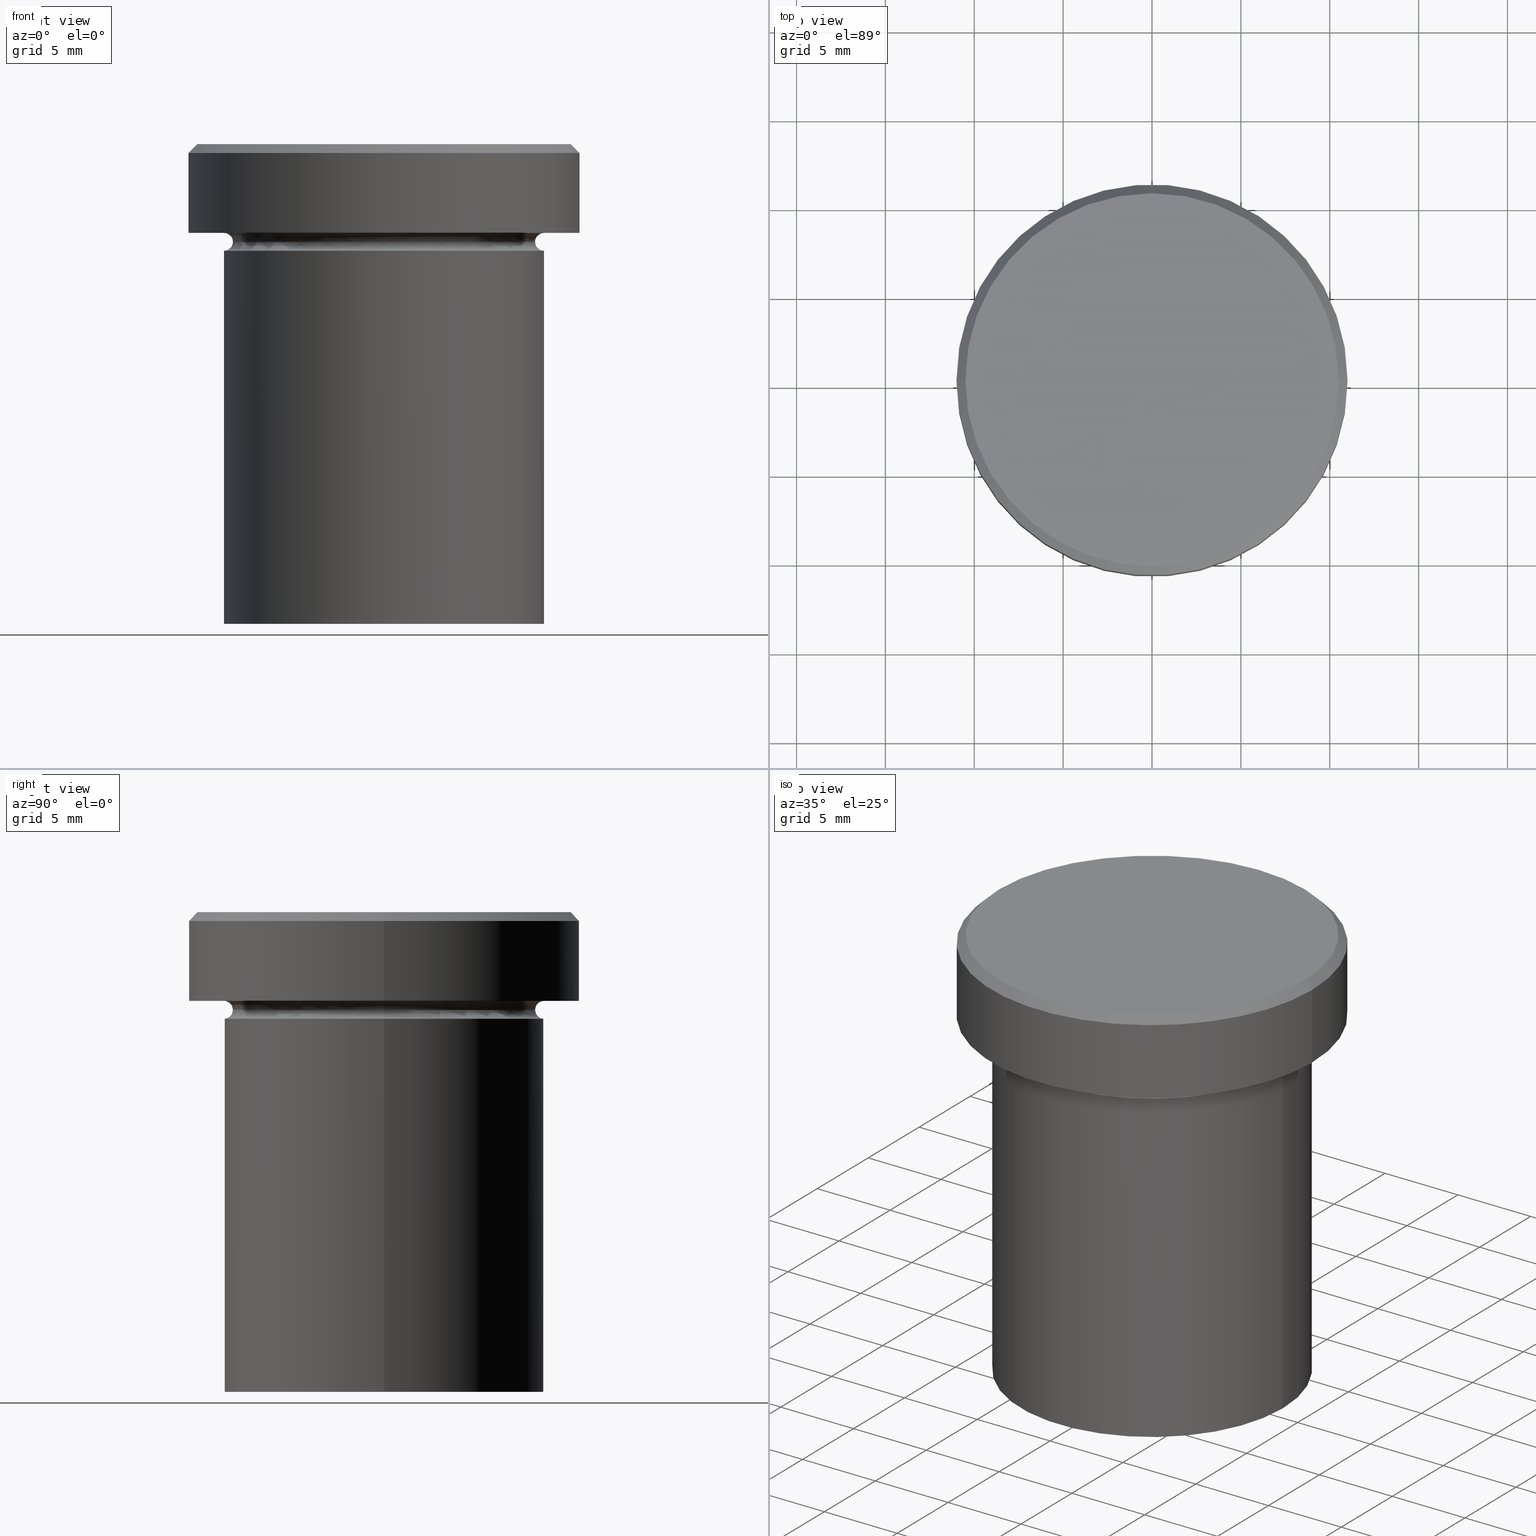
[diagram: canonical four-view strip — front | top / right | iso, engineering-drawing reading convention]
A machine part, canonical four-view strip (front | top / right | iso — engineering-drawing reading convention). The complete STEP part file that produces these views, byte-faithful:
ISO-10303-21;
HEADER;
FILE_DESCRIPTION (( 'STEP AP203' ),
    '1' );
FILE_NAME ('5b6a.STEP',
    '2024-01-02T22:01:50',
    ( '' ),
    ( '' ),
    'SwSTEP 2.0',
    'SolidWorks 2019',
    '' );
FILE_SCHEMA (( 'CONFIG_CONTROL_DESIGN' ));
ENDSEC;

DATA;
#1 = VERTEX_POINT ( 'NONE', #386 ) ;
#2 = DIRECTION ( 'NONE',  ( 0.000000000000000000, 0.000000000000000000, -1.000000000000000000 ) ) ;
#3 = CIRCLE ( 'NONE', #237, 9.000000000000000000 ) ;
#4 = ORIENTED_EDGE ( 'NONE', *, *, #89, .T. ) ;
#5 = CARTESIAN_POINT ( 'NONE',  ( 0.000000000000000000, 0.000000000000000000, -5.000000000000000000 ) ) ;
#6 = LOCAL_TIME ( 23, 1, 50.00000000000000000, #80 ) ;
#7 = DIRECTION ( 'NONE',  ( 0.000000000000000000, 0.000000000000000000, -1.000000000000000000 ) ) ;
#8 = ADVANCED_FACE ( 'NONE', ( #142 ), #201, .T. ) ;
#9 = ORIENTED_EDGE ( 'NONE', *, *, #362, .F. ) ;
#10 = CALENDAR_DATE ( 2024, 2, 1 ) ;
#11 = DIRECTION ( 'NONE',  ( -1.000000000000000000, 0.000000000000000000, -0.000000000000000000 ) ) ;
#12 = DATE_AND_TIME ( #296, #60 ) ;
#13 = VERTEX_POINT ( 'NONE', #264 ) ;
#14 = AXIS2_PLACEMENT_3D ( 'NONE', #32, #317, #289 ) ;
#15 = EDGE_CURVE ( 'NONE', #93, #156, #310, .T. ) ;
#16 = PERSON ( 'NEUR�EN�', 'NEUR�EN�', 'NEUR�EN�', ('NEUR�EN�'), ('NEUR�EN�'), ('NEUR�EN�') ) ;
#17 = APPROVAL_DATE_TIME ( #232, #208 ) ;
#18 = EDGE_CURVE ( 'NONE', #156, #93, #91, .T. ) ;
#19 = AXIS2_PLACEMENT_3D ( 'NONE', #352, #69, #257 ) ;
#20 = CARTESIAN_POINT ( 'NONE',  ( -10.49999999999999822, 0.000000000000000000, 0.000000000000000000 ) ) ;
#21 = PRODUCT_RELATED_PRODUCT_CATEGORY ( 'detail', '', ( #129 ) ) ;
#22 = DIRECTION ( 'NONE',  ( -0.000000000000000000, -0.000000000000000000, 1.000000000000000000 ) ) ;
#23 = DIRECTION ( 'NONE',  ( 1.000000000000000000, 0.000000000000000000, 0.000000000000000000 ) ) ;
#24 = ADVANCED_FACE ( 'NONE', ( #46 ), #397, .F. ) ;
#25 = CARTESIAN_POINT ( 'NONE',  ( 10.49999999999999822, 1.316495309083404420E-15, 0.000000000000000000 ) ) ;
#26 = VECTOR ( 'NONE', #134, 1000.000000000000114 ) ;
#27 = CARTESIAN_POINT ( 'NONE',  ( -11.00000000000000000, 1.347111479062088405E-15, -0.5000000000000038858 ) ) ;
#28 = ORIENTED_EDGE ( 'NONE', *, *, #186, .T. ) ;
#29 = CYLINDRICAL_SURFACE ( 'NONE', #168, 9.000000000000000000 ) ;
#30 = EDGE_CURVE ( 'NONE', #44, #253, #131, .T. ) ;
#31 = ORIENTED_EDGE ( 'NONE', *, *, #191, .T. ) ;
#32 = CARTESIAN_POINT ( 'NONE',  ( 0.000000000000000000, 0.000000000000000000, 0.000000000000000000 ) ) ;
#33 = AXIS2_PLACEMENT_3D ( 'NONE', #85, #59, #332 ) ;
#34 = EDGE_LOOP ( 'NONE', ( #202, #218, #31, #356 ) ) ;
#35 =( NAMED_UNIT ( * ) PLANE_ANGLE_UNIT ( ) SI_UNIT ( $, .RADIAN. ) );
#36 = ORIENTED_EDGE ( 'NONE', *, *, #82, .T. ) ;
#37 = FACE_OUTER_BOUND ( 'NONE', #188, .T. ) ;
#38 = CARTESIAN_POINT ( 'NONE',  ( 8.499999999999998224, 0.000000000000000000, -5.500000000000000000 ) ) ;
#39 = CC_DESIGN_DATE_AND_TIME_ASSIGNMENT ( #326, #43, ( #259 ) ) ;
#40 = CARTESIAN_POINT ( 'NONE',  ( 0.000000000000000000, 0.000000000000000000, -27.00000000000000000 ) ) ;
#41 = CIRCLE ( 'NONE', #154, 11.00000000000000000 ) ;
#42 = APPROVAL_PERSON_ORGANIZATION ( #203, #173, #328 ) ;
#43 = DATE_TIME_ROLE ( 'creation_date' ) ;
#44 = VERTEX_POINT ( 'NONE', #104 ) ;
#45 = APPROVAL_STATUS ( 'not_yet_approved' ) ;
#46 = FACE_OUTER_BOUND ( 'NONE', #34, .T. ) ;
#47 = MECHANICAL_CONTEXT ( 'NONE', #148, 'mechanical' ) ;
#48 = CONICAL_SURFACE ( 'NONE', #233, 10.49999999999999822, 0.7853981633974447263 ) ;
#49 = CC_DESIGN_APPROVAL ( #173, ( #388 ) ) ;
#50 = PERSON_AND_ORGANIZATION ( #16, #364 ) ;
#51 = DIRECTION ( 'NONE',  ( 1.000000000000000000, 0.000000000000000000, 0.000000000000000000 ) ) ;
#52 = EDGE_CURVE ( 'NONE', #66, #314, #3, .T. ) ;
#53 = VERTEX_POINT ( 'NONE', #320 ) ;
#54 = LOCAL_TIME ( 23, 1, 50.00000000000000000, #395 ) ;
#55 = DIRECTION ( 'NONE',  ( 1.000000000000000000, 0.000000000000000000, 0.000000000000000000 ) ) ;
#56 = DIRECTION ( 'NONE',  ( -0.000000000000000000, -0.000000000000000000, 1.000000000000000000 ) ) ;
#57 = DIRECTION ( 'NONE',  ( 0.000000000000000000, 0.000000000000000000, -1.000000000000000000 ) ) ;
#58 = EDGE_LOOP ( 'NONE', ( #403, #139, #184, #78 ) ) ;
#59 = DIRECTION ( 'NONE',  ( 0.000000000000000000, 0.000000000000000000, -1.000000000000000000 ) ) ;
#60 = LOCAL_TIME ( 23, 1, 50.00000000000000000, #177 ) ;
#61 = VERTEX_POINT ( 'NONE', #38 ) ;
#62 = ADVANCED_FACE ( 'NONE', ( #76 ), #325, .T. ) ;
#63 = DIRECTION ( 'NONE',  ( -1.000000000000000000, -1.224646799147353454E-16, 0.000000000000000000 ) ) ;
#64 = ORIENTED_EDGE ( 'NONE', *, *, #391, .T. ) ;
#65 = CARTESIAN_POINT ( 'NONE',  ( 9.000000000000000000, 1.102182119232617714E-15, -4.999999999999999112 ) ) ;
#66 = VERTEX_POINT ( 'NONE', #276 ) ;
#67 = CALENDAR_DATE ( 2024, 2, 1 ) ;
#68 = ORIENTED_EDGE ( 'NONE', *, *, #304, .T. ) ;
#69 = DIRECTION ( 'NONE',  ( 0.000000000000000000, -1.000000000000000000, 0.000000000000000000 ) ) ;
#70 = DIRECTION ( 'NONE',  ( -0.000000000000000000, -0.000000000000000000, 1.000000000000000000 ) ) ;
#71 = EDGE_CURVE ( 'NONE', #61, #314, #72, .T. ) ;
#72 = CIRCLE ( 'NONE', #298, 0.5000000000000004441 ) ;
#73 = DIRECTION ( 'NONE',  ( 0.000000000000000000, -0.000000000000000000, 1.000000000000000000 ) ) ;
#74 = DESIGN_CONTEXT ( 'detailed design', #207, 'design' ) ;
#75 = APPLICATION_PROTOCOL_DEFINITION ( 'international standard', 'config_control_design', 1994, #207 ) ;
#76 = FACE_OUTER_BOUND ( 'NONE', #385, .T. ) ;
#77 = CIRCLE ( 'NONE', #381, 11.00000000000000000 ) ;
#78 = ORIENTED_EDGE ( 'NONE', *, *, #362, .T. ) ;
#79 = DATE_TIME_ROLE ( 'classification_date' ) ;
#80 = COORDINATED_UNIVERSAL_TIME_OFFSET ( 1, 0, .AHEAD. ) ;
#81 = PERSON_AND_ORGANIZATION ( #16, #364 ) ;
#82 = EDGE_CURVE ( 'NONE', #53, #253, #178, .T. ) ;
#83 = CLOSED_SHELL ( 'NONE', ( #324, #288, #24, #319, #334, #62, #8, #94, #120, #275, #300, #265, #280 ) ) ;
#84 = DIRECTION ( 'NONE',  ( 1.000000000000000000, 0.000000000000000000, 0.000000000000000000 ) ) ;
#85 = CARTESIAN_POINT ( 'NONE',  ( 0.000000000000000000, 0.000000000000000000, -0.5000000000000038858 ) ) ;
#86 = CIRCLE ( 'NONE', #101, 8.499999999999998224 ) ;
#87 = TOROIDAL_SURFACE ( 'NONE', #149, 9.000000000000000000, 0.5000000000000000000 ) ;
#88 = CARTESIAN_POINT ( 'NONE',  ( 9.000000000000000000, 1.102182119232617714E-15, -5.500000000000000000 ) ) ;
#89 = EDGE_CURVE ( 'NONE', #255, #53, #246, .T. ) ;
#90 = DIRECTION ( 'NONE',  ( -0.000000000000000000, -0.000000000000000000, 1.000000000000000000 ) ) ;
#91 = CIRCLE ( 'NONE', #145, 10.49999999999999822 ) ;
#92 = DIRECTION ( 'NONE',  ( -0.000000000000000000, -0.000000000000000000, 1.000000000000000000 ) ) ;
#93 = VERTEX_POINT ( 'NONE', #20 ) ;
#94 = ADVANCED_FACE ( 'NONE', ( #279 ), #150, .T. ) ;
#95 = LINE ( 'NONE', #242, #193 ) ;
#96 = AXIS2_PLACEMENT_3D ( 'NONE', #160, #127, #282 ) ;
#97 = ORIENTED_EDGE ( 'NONE', *, *, #71, .T. ) ;
#98 = CARTESIAN_POINT ( 'NONE',  ( 0.000000000000000000, 0.000000000000000000, -0.5000000000000038858 ) ) ;
#99 = DIRECTION ( 'NONE',  ( -0.000000000000000000, -0.000000000000000000, 1.000000000000000000 ) ) ;
#100 = CARTESIAN_POINT ( 'NONE',  ( 10.49999999999999822, 1.285879139104720633E-15, 0.000000000000000000 ) ) ;
#101 = AXIS2_PLACEMENT_3D ( 'NONE', #344, #398, #340 ) ;
#102 =( GEOMETRIC_REPRESENTATION_CONTEXT ( 3 ) GLOBAL_UNCERTAINTY_ASSIGNED_CONTEXT ( ( #269 ) ) GLOBAL_UNIT_ASSIGNED_CONTEXT ( ( #224, #35, #130 ) ) REPRESENTATION_CONTEXT ( 'NONE', 'WORKASPACE' ) );
#103 = EDGE_CURVE ( 'NONE', #13, #179, #155, .T. ) ;
#104 = CARTESIAN_POINT ( 'NONE',  ( -9.000000000000000000, 1.102182119232617714E-15, -27.00000000000000000 ) ) ;
#105 = CARTESIAN_POINT ( 'NONE',  ( -10.49999999999999822, 0.000000000000000000, 0.000000000000000000 ) ) ;
#106 = ORIENTED_EDGE ( 'NONE', *, *, #215, .T. ) ;
#107 = FACE_OUTER_BOUND ( 'NONE', #283, .T. ) ;
#108 = ORIENTED_EDGE ( 'NONE', *, *, #113, .F. ) ;
#109 = ORIENTED_EDGE ( 'NONE', *, *, #30, .F. ) ;
#110 = CIRCLE ( 'NONE', #19, 0.5000000000000004441 ) ;
#111 = DATE_AND_TIME ( #239, #258 ) ;
#112 = ORIENTED_EDGE ( 'NONE', *, *, #245, .F. ) ;
#113 = EDGE_CURVE ( 'NONE', #61, #1, #86, .T. ) ;
#114 = CONICAL_SURFACE ( 'NONE', #14, 10.49999999999999822, 0.7853981633974447263 ) ;
#115 = CARTESIAN_POINT ( 'NONE',  ( 0.000000000000000000, 0.000000000000000000, -27.00000000000000000 ) ) ;
#116 = DIRECTION ( 'NONE',  ( -1.224646799147353207E-16, 1.000000000000000000, 0.000000000000000000 ) ) ;
#117 = CIRCLE ( 'NONE', #302, 9.000000000000000000 ) ;
#118 = CARTESIAN_POINT ( 'NONE',  ( 0.000000000000000000, 0.000000000000000000, -5.500000000000000000 ) ) ;
#119 = CARTESIAN_POINT ( 'NONE',  ( 0.000000000000000000, 0.000000000000000000, -5.000000000000000000 ) ) ;
#120 = ADVANCED_FACE ( 'NONE', ( #273, #278 ), #367, .T. ) ;
#121 = CARTESIAN_POINT ( 'NONE',  ( 0.000000000000000000, 0.000000000000000000, -6.000000000000000000 ) ) ;
#122 = EDGE_LOOP ( 'NONE', ( #293, #68, #165, #197 ) ) ;
#123 = CARTESIAN_POINT ( 'NONE',  ( 0.000000000000000000, 0.000000000000000000, -5.500000000000000000 ) ) ;
#124 = CIRCLE ( 'NONE', #33, 11.00000000000000000 ) ;
#125 = LOCAL_TIME ( 23, 1, 50.00000000000000000, #175 ) ;
#126 = ORIENTED_EDGE ( 'NONE', *, *, #15, .F. ) ;
#127 = DIRECTION ( 'NONE',  ( -0.000000000000000000, -1.000000000000000000, -0.000000000000000000 ) ) ;
#128 = VERTEX_POINT ( 'NONE', #301 ) ;
#129 = PRODUCT ( '5b6a', '5b6a', '', ( #47 ) ) ;
#130 =( NAMED_UNIT ( * ) SI_UNIT ( $, .STERADIAN. ) SOLID_ANGLE_UNIT ( ) );
#131 = LINE ( 'NONE', #380, #393 ) ;
#132 = DIRECTION ( 'NONE',  ( -0.000000000000000000, -0.000000000000000000, 1.000000000000000000 ) ) ;
#133 = ORIENTED_EDGE ( 'NONE', *, *, #366, .T. ) ;
#134 = DIRECTION ( 'NONE',  ( -0.7071067811865451302, 0.000000000000000000, -0.7071067811865500152 ) ) ;
#135 = CC_DESIGN_PERSON_AND_ORGANIZATION_ASSIGNMENT ( #50, #359, ( #335 ) ) ;
#136 = CARTESIAN_POINT ( 'NONE',  ( 0.000000000000000000, 0.000000000000000000, -5.000000000000000000 ) ) ;
#137 = AXIS2_PLACEMENT_3D ( 'NONE', #209, #331, #199 ) ;
#138 = APPROVAL_STATUS ( 'not_yet_approved' ) ;
#139 = ORIENTED_EDGE ( 'NONE', *, *, #245, .T. ) ;
#140 = SECURITY_CLASSIFICATION_LEVEL ( 'unclassified' ) ;
#141 = AXIS2_PLACEMENT_3D ( 'NONE', #98, #7, #321 ) ;
#142 = FACE_OUTER_BOUND ( 'NONE', #225, .T. ) ;
#143 = CIRCLE ( 'NONE', #205, 8.499999999999998224 ) ;
#144 = APPROVAL_ROLE ( '' ) ;
#145 = AXIS2_PLACEMENT_3D ( 'NONE', #234, #353, #236 ) ;
#146 = EDGE_CURVE ( 'NONE', #1, #253, #369, .T. ) ;
#147 = CALENDAR_DATE ( 2024, 2, 1 ) ;
#148 = APPLICATION_CONTEXT ( 'configuration controlled 3d designs of mechanical parts and assemblies' ) ;
#149 = AXIS2_PLACEMENT_3D ( 'NONE', #379, #190, #383 ) ;
#150 = CYLINDRICAL_SURFACE ( 'NONE', #387, 11.00000000000000000 ) ;
#151 = CC_DESIGN_PERSON_AND_ORGANIZATION_ASSIGNMENT ( #360, #266, ( #388 ) ) ;
#152 = DIRECTION ( 'NONE',  ( 1.000000000000000000, 0.000000000000000000, 0.000000000000000000 ) ) ;
#153 = AXIS2_PLACEMENT_3D ( 'NONE', #390, #358, #84 ) ;
#154 = AXIS2_PLACEMENT_3D ( 'NONE', #183, #214, #55 ) ;
#155 = LINE ( 'NONE', #217, #211 ) ;
#156 = VERTEX_POINT ( 'NONE', #25 ) ;
#157 = DIRECTION ( 'NONE',  ( -1.000000000000000000, 1.224646799147353454E-16, 0.000000000000000000 ) ) ;
#158 = CC_DESIGN_PERSON_AND_ORGANIZATION_ASSIGNMENT ( #238, #394, ( #259 ) ) ;
#159 = ORIENTED_EDGE ( 'NONE', *, *, #366, .F. ) ;
#160 = CARTESIAN_POINT ( 'NONE',  ( -9.000000000000000000, 0.000000000000000000, -5.500000000000000000 ) ) ;
#161 = DIRECTION ( 'NONE',  ( -1.000000000000000000, 0.000000000000000000, 0.000000000000000000 ) ) ;
#162 = CC_DESIGN_APPROVAL ( #372, ( #335 ) ) ;
#163 = ORIENTED_EDGE ( 'NONE', *, *, #349, .T. ) ;
#164 = EDGE_CURVE ( 'NONE', #13, #128, #77, .T. ) ;
#165 = ORIENTED_EDGE ( 'NONE', *, *, #221, .F. ) ;
#166 = DIRECTION ( 'NONE',  ( 1.000000000000000000, 0.000000000000000000, 0.000000000000000000 ) ) ;
#167 = LINE ( 'NONE', #105, #26 ) ;
#168 = AXIS2_PLACEMENT_3D ( 'NONE', #405, #99, #346 ) ;
#169 = CC_DESIGN_SECURITY_CLASSIFICATION ( #388, ( #335 ) ) ;
#170 = DIRECTION ( 'NONE',  ( -0.000000000000000000, -0.000000000000000000, 1.000000000000000000 ) ) ;
#171 = PERSON_AND_ORGANIZATION ( #16, #364 ) ;
#172 = CARTESIAN_POINT ( 'NONE',  ( 0.000000000000000000, 9.000000000000000000, -26.99999999999999645 ) ) ;
#173 = APPROVAL ( #206, 'NEUR�EN�' ) ;
#174 = ORIENTED_EDGE ( 'NONE', *, *, #164, .F. ) ;
#175 = COORDINATED_UNIVERSAL_TIME_OFFSET ( 1, 0, .AHEAD. ) ;
#176 = CIRCLE ( 'NONE', #315, 9.000000000000000000 ) ;
#177 = COORDINATED_UNIVERSAL_TIME_OFFSET ( 1, 0, .AHEAD. ) ;
#178 = CIRCLE ( 'NONE', #374, 9.000000000000000000 ) ;
#179 = VERTEX_POINT ( 'NONE', #219 ) ;
#180 = AXIS2_PLACEMENT_3D ( 'NONE', #118, #57, #244 ) ;
#181 = CARTESIAN_POINT ( 'NONE',  ( 0.000000000000000000, 0.000000000000000000, -5.500000000000000000 ) ) ;
#182 = DIRECTION ( 'NONE',  ( 1.000000000000000000, 0.000000000000000000, 0.000000000000000000 ) ) ;
#183 = CARTESIAN_POINT ( 'NONE',  ( 0.000000000000000000, 0.000000000000000000, -5.000000000000000000 ) ) ;
#184 = ORIENTED_EDGE ( 'NONE', *, *, #103, .T. ) ;
#185 = APPROVAL_PERSON_ORGANIZATION ( #363, #208, #144 ) ;
#186 = EDGE_CURVE ( 'NONE', #128, #227, #95, .T. ) ;
#187 = CARTESIAN_POINT ( 'NONE',  ( -9.000000000000000000, 1.102182119232617714E-15, -5.500000000000000000 ) ) ;
#188 = EDGE_LOOP ( 'NONE', ( #133, #342, #260, #290 ) ) ;
#189 = DIRECTION ( 'NONE',  ( -0.000000000000000000, -0.000000000000000000, 1.000000000000000000 ) ) ;
#190 = DIRECTION ( 'NONE',  ( 0.000000000000000000, 0.000000000000000000, -1.000000000000000000 ) ) ;
#191 = EDGE_CURVE ( 'NONE', #253, #53, #176, .T. ) ;
#192 = EDGE_LOOP ( 'NONE', ( #407, #195, #350, #268 ) ) ;
#193 = VECTOR ( 'NONE', #303, 1000.000000000000000 ) ;
#194 = DIRECTION ( 'NONE',  ( 0.7071067811865451302, 8.659560562354903276E-17, -0.7071067811865500152 ) ) ;
#195 = ORIENTED_EDGE ( 'NONE', *, *, #113, .T. ) ;
#196 = CARTESIAN_POINT ( 'NONE',  ( 0.000000000000000000, 0.000000000000000000, 0.000000000000000000 ) ) ;
#197 = ORIENTED_EDGE ( 'NONE', *, *, #391, .F. ) ;
#198 = CARTESIAN_POINT ( 'NONE',  ( 0.000000000000000000, 0.000000000000000000, 0.000000000000000000 ) ) ;
#199 = DIRECTION ( 'NONE',  ( 1.000000000000000000, 0.000000000000000000, 0.000000000000000000 ) ) ;
#200 = CC_DESIGN_APPROVAL ( #208, ( #259 ) ) ;
#201 = PLANE ( 'NONE',  #305 ) ;
#202 = ORIENTED_EDGE ( 'NONE', *, *, #249, .F. ) ;
#203 = PERSON_AND_ORGANIZATION ( #16, #364 ) ;
#204 = AXIS2_PLACEMENT_3D ( 'NONE', #370, #307, #241 ) ;
#205 = AXIS2_PLACEMENT_3D ( 'NONE', #181, #22, #152 ) ;
#206 = APPROVAL_STATUS ( 'not_yet_approved' ) ;
#207 = APPLICATION_CONTEXT ( 'configuration controlled 3d designs of mechanical parts and assemblies' ) ;
#208 = APPROVAL ( #138, 'NEUR�EN�' ) ;
#209 = CARTESIAN_POINT ( 'NONE',  ( 0.000000000000000000, 0.000000000000000000, 0.000000000000000000 ) ) ;
#210 = DIRECTION ( 'NONE',  ( 1.000000000000000000, 0.000000000000000000, 0.000000000000000000 ) ) ;
#211 = VECTOR ( 'NONE', #92, 1000.000000000000000 ) ;
#212 = DIRECTION ( 'NONE',  ( 1.000000000000000000, 0.000000000000000000, 0.000000000000000000 ) ) ;
#213 = ADVANCED_BREP_SHAPE_REPRESENTATION ( '5b6a', ( #361, #285 ), #102 ) ;
#214 = DIRECTION ( 'NONE',  ( -0.000000000000000000, -0.000000000000000000, 1.000000000000000000 ) ) ;
#215 = EDGE_CURVE ( 'NONE', #44, #255, #117, .T. ) ;
#216 = EDGE_LOOP ( 'NONE', ( #248, #97, #220, #229 ) ) ;
#217 = CARTESIAN_POINT ( 'NONE',  ( 11.00000000000000000, 0.000000000000000000, 0.000000000000000000 ) ) ;
#218 = ORIENTED_EDGE ( 'NONE', *, *, #146, .T. ) ;
#219 = CARTESIAN_POINT ( 'NONE',  ( 11.00000000000000000, 0.000000000000000000, -0.5000000000000038858 ) ) ;
#220 = ORIENTED_EDGE ( 'NONE', *, *, #52, .F. ) ;
#221 = EDGE_CURVE ( 'NONE', #227, #179, #124, .T. ) ;
#222 = FACE_OUTER_BOUND ( 'NONE', #216, .T. ) ;
#223 = EDGE_LOOP ( 'NONE', ( #109, #106, #4, #297 ) ) ;
#224 =( LENGTH_UNIT ( ) NAMED_UNIT ( * ) SI_UNIT ( .MILLI., .METRE. ) );
#225 = EDGE_LOOP ( 'NONE', ( #378, #376 ) ) ;
#226 = DIRECTION ( 'NONE',  ( -0.000000000000000000, -0.000000000000000000, 1.000000000000000000 ) ) ;
#227 = VERTEX_POINT ( 'NONE', #27 ) ;
#228 = DIRECTION ( 'NONE',  ( -1.000000000000000000, 0.000000000000000000, 0.000000000000000000 ) ) ;
#229 = ORIENTED_EDGE ( 'NONE', *, *, #402, .F. ) ;
#230 = CC_DESIGN_PERSON_AND_ORGANIZATION_ASSIGNMENT ( #81, #270, ( #335 ) ) ;
#231 = DIRECTION ( 'NONE',  ( 1.000000000000000000, 0.000000000000000000, 0.000000000000000000 ) ) ;
#232 = DATE_AND_TIME ( #10, #6 ) ;
#233 = AXIS2_PLACEMENT_3D ( 'NONE', #196, #2, #161 ) ;
#234 = CARTESIAN_POINT ( 'NONE',  ( 0.000000000000000000, 0.000000000000000000, 0.000000000000000000 ) ) ;
#235 = APPROVAL_ROLE ( '' ) ;
#236 = DIRECTION ( 'NONE',  ( 1.000000000000000000, 0.000000000000000000, 0.000000000000000000 ) ) ;
#237 = AXIS2_PLACEMENT_3D ( 'NONE', #136, #70, #262 ) ;
#238 = PERSON_AND_ORGANIZATION ( #16, #364 ) ;
#239 = CALENDAR_DATE ( 2024, 2, 1 ) ;
#240 = APPROVAL_PERSON_ORGANIZATION ( #171, #372, #235 ) ;
#241 = DIRECTION ( 'NONE',  ( -1.000000000000000000, 0.000000000000000000, -0.000000000000000000 ) ) ;
#242 = CARTESIAN_POINT ( 'NONE',  ( -11.00000000000000000, 1.347111479062088405E-15, 0.000000000000000000 ) ) ;
#243 = AXIS2_PLACEMENT_3D ( 'NONE', #40, #226, #409 ) ;
#244 = DIRECTION ( 'NONE',  ( -1.000000000000000000, 0.000000000000000000, 0.000000000000000000 ) ) ;
#245 = EDGE_CURVE ( 'NONE', #128, #13, #41, .T. ) ;
#246 = LINE ( 'NONE', #336, #333 ) ;
#247 = DIRECTION ( 'NONE',  ( 1.000000000000000000, 0.000000000000000000, 0.000000000000000000 ) ) ;
#248 = ORIENTED_EDGE ( 'NONE', *, *, #249, .T. ) ;
#249 = EDGE_CURVE ( 'NONE', #1, #61, #143, .T. ) ;
#250 = CIRCLE ( 'NONE', #96, 0.5000000000000004441 ) ;
#251 = DIRECTION ( 'NONE',  ( -0.000000000000000000, -0.000000000000000000, 1.000000000000000000 ) ) ;
#252 = ORIENTED_EDGE ( 'NONE', *, *, #146, .F. ) ;
#253 = VERTEX_POINT ( 'NONE', #338 ) ;
#254 = DIRECTION ( 'NONE',  ( -0.000000000000000000, -0.000000000000000000, 1.000000000000000000 ) ) ;
#255 = VERTEX_POINT ( 'NONE', #274 ) ;
#256 = CIRCLE ( 'NONE', #316, 9.000000000000000000 ) ;
#257 = DIRECTION ( 'NONE',  ( 0.000000000000000000, 0.000000000000000000, -1.000000000000000000 ) ) ;
#258 = LOCAL_TIME ( 23, 1, 50.00000000000000000, #389 ) ;
#259 = PRODUCT_DEFINITION ( 'NEZN�M�', '', #335, #74 ) ;
#260 = ORIENTED_EDGE ( 'NONE', *, *, #82, .F. ) ;
#261 = CARTESIAN_POINT ( 'NONE',  ( 0.000000000000000000, 0.000000000000000000, 0.000000000000000000 ) ) ;
#262 = DIRECTION ( 'NONE',  ( -1.000000000000000000, 0.000000000000000000, 0.000000000000000000 ) ) ;
#263 = CARTESIAN_POINT ( 'NONE',  ( 0.000000000000000000, 0.000000000000000000, 0.000000000000000000 ) ) ;
#264 = CARTESIAN_POINT ( 'NONE',  ( 11.00000000000000000, 0.000000000000000000, -5.000000000000000000 ) ) ;
#265 = ADVANCED_FACE ( 'NONE', ( #368 ), #357, .F. ) ;
#266 = PERSON_AND_ORGANIZATION_ROLE ( 'classification_officer' ) ;
#267 = AXIS2_PLACEMENT_3D ( 'NONE', #198, #189, #231 ) ;
#268 = ORIENTED_EDGE ( 'NONE', *, *, #408, .F. ) ;
#269 = UNCERTAINTY_MEASURE_WITH_UNIT (LENGTH_MEASURE( 1.000000000000000082E-05 ), #224, 'distance_accuracy_value', 'NONE');
#270 = PERSON_AND_ORGANIZATION_ROLE ( 'creator' ) ;
#271 = DIRECTION ( 'NONE',  ( 0.000000000000000000, 0.000000000000000000, 1.000000000000000000 ) ) ;
#272 = PERSON_AND_ORGANIZATION_ROLE ( 'design_owner' ) ;
#273 = FACE_BOUND ( 'NONE', #339, .T. ) ;
#274 = CARTESIAN_POINT ( 'NONE',  ( 9.000000000000000000, 0.000000000000000000, -27.00000000000000000 ) ) ;
#275 = ADVANCED_FACE ( 'NONE', ( #399 ), #29, .T. ) ;
#276 = CARTESIAN_POINT ( 'NONE',  ( -9.000000000000000000, 0.000000000000000000, -4.999999999999999112 ) ) ;
#277 = CIRCLE ( 'NONE', #141, 11.00000000000000000 ) ;
#278 = FACE_OUTER_BOUND ( 'NONE', #345, .T. ) ;
#279 = FACE_OUTER_BOUND ( 'NONE', #58, .T. ) ;
#280 = ADVANCED_FACE ( 'NONE', ( #107 ), #48, .T. ) ;
#281 = ORIENTED_EDGE ( 'NONE', *, *, #164, .T. ) ;
#282 = DIRECTION ( 'NONE',  ( 0.000000000000000000, 0.000000000000000000, -1.000000000000000000 ) ) ;
#283 = EDGE_LOOP ( 'NONE', ( #384, #126, #64, #9 ) ) ;
#284 = DATE_AND_TIME ( #67, #125 ) ;
#285 = AXIS2_PLACEMENT_3D ( 'NONE', #263, #271, #51 ) ;
#286 = FACE_OUTER_BOUND ( 'NONE', #347, .T. ) ;
#287 = ORIENTED_EDGE ( 'NONE', *, *, #221, .T. ) ;
#288 = ADVANCED_FACE ( 'NONE', ( #222 ), #87, .F. ) ;
#289 = DIRECTION ( 'NONE',  ( -1.000000000000000000, 0.000000000000000000, 0.000000000000000000 ) ) ;
#290 = ORIENTED_EDGE ( 'NONE', *, *, #89, .F. ) ;
#291 = CIRCLE ( 'NONE', #243, 9.000000000000000000 ) ;
#292 = CYLINDRICAL_SURFACE ( 'NONE', #267, 9.000000000000000000 ) ;
#293 = ORIENTED_EDGE ( 'NONE', *, *, #18, .F. ) ;
#294 = APPROVAL_DATE_TIME ( #12, #372 ) ;
#295 = DIRECTION ( 'NONE',  ( 0.000000000000000000, 0.000000000000000000, -1.000000000000000000 ) ) ;
#296 = CALENDAR_DATE ( 2024, 2, 1 ) ;
#297 = ORIENTED_EDGE ( 'NONE', *, *, #191, .F. ) ;
#298 = AXIS2_PLACEMENT_3D ( 'NONE', #88, #116, #63 ) ;
#299 = PERSON_AND_ORGANIZATION ( #16, #364 ) ;
#300 = ADVANCED_FACE ( 'NONE', ( #377 ), #375, .F. ) ;
#301 = CARTESIAN_POINT ( 'NONE',  ( -11.00000000000000000, 1.347111479062088405E-15, -5.000000000000000000 ) ) ;
#302 = AXIS2_PLACEMENT_3D ( 'NONE', #115, #90, #182 ) ;
#303 = DIRECTION ( 'NONE',  ( -0.000000000000000000, -0.000000000000000000, 1.000000000000000000 ) ) ;
#304 = EDGE_CURVE ( 'NONE', #156, #179, #348, .T. ) ;
#305 = AXIS2_PLACEMENT_3D ( 'NONE', #354, #73, #327 ) ;
#306 = CARTESIAN_POINT ( 'NONE',  ( 0.000000000000000000, 0.000000000000000000, 0.000000000000000000 ) ) ;
#307 = DIRECTION ( 'NONE',  ( 0.000000000000000000, 0.000000000000000000, -1.000000000000000000 ) ) ;
#308 = DIRECTION ( 'NONE',  ( 1.224646799147353207E-16, 1.000000000000000000, 0.000000000000000000 ) ) ;
#309 = ORIENTED_EDGE ( 'NONE', *, *, #215, .F. ) ;
#310 = CIRCLE ( 'NONE', #137, 10.49999999999999822 ) ;
#311 = DIRECTION ( 'NONE',  ( 1.000000000000000000, 0.000000000000000000, 0.000000000000000000 ) ) ;
#312 = ORIENTED_EDGE ( 'NONE', *, *, #408, .T. ) ;
#313 = FACE_OUTER_BOUND ( 'NONE', #122, .T. ) ;
#314 = VERTEX_POINT ( 'NONE', #65 ) ;
#315 = AXIS2_PLACEMENT_3D ( 'NONE', #121, #56, #247 ) ;
#316 = AXIS2_PLACEMENT_3D ( 'NONE', #5, #251, #228 ) ;
#317 = DIRECTION ( 'NONE',  ( 0.000000000000000000, 0.000000000000000000, -1.000000000000000000 ) ) ;
#318 = ORIENTED_EDGE ( 'NONE', *, *, #52, .T. ) ;
#319 = ADVANCED_FACE ( 'NONE', ( #37 ), #292, .T. ) ;
#320 = CARTESIAN_POINT ( 'NONE',  ( 9.000000000000000000, 0.000000000000000000, -6.000000000000000000 ) ) ;
#321 = DIRECTION ( 'NONE',  ( 1.000000000000000000, 0.000000000000000000, 0.000000000000000000 ) ) ;
#322 = ORIENTED_EDGE ( 'NONE', *, *, #103, .F. ) ;
#323 = AXIS2_PLACEMENT_3D ( 'NONE', #261, #254, #166 ) ;
#324 = ADVANCED_FACE ( 'NONE', ( #313 ), #114, .T. ) ;
#325 = PLANE ( 'NONE',  #337 ) ;
#326 = DATE_AND_TIME ( #147, #54 ) ;
#327 = DIRECTION ( 'NONE',  ( 1.000000000000000000, 0.000000000000000000, 0.000000000000000000 ) ) ;
#328 = APPROVAL_ROLE ( '' ) ;
#329 = APPLICATION_PROTOCOL_DEFINITION ( 'international standard', 'config_control_design', 1994, #148 ) ;
#330 = CC_DESIGN_PERSON_AND_ORGANIZATION_ASSIGNMENT ( #299, #272, ( #129 ) ) ;
#331 = DIRECTION ( 'NONE',  ( -0.000000000000000000, -0.000000000000000000, 1.000000000000000000 ) ) ;
#332 = DIRECTION ( 'NONE',  ( 1.000000000000000000, 0.000000000000000000, 0.000000000000000000 ) ) ;
#333 = VECTOR ( 'NONE', #404, 1000.000000000000000 ) ;
#334 = ADVANCED_FACE ( 'NONE', ( #286 ), #355, .T. ) ;
#335 = PRODUCT_DEFINITION_FORMATION_WITH_SPECIFIED_SOURCE ( 'LIBOVOLN�', '', #129, .NOT_KNOWN. ) ;
#336 = CARTESIAN_POINT ( 'NONE',  ( 9.000000000000000000, 0.000000000000000000, 0.000000000000000000 ) ) ;
#337 = AXIS2_PLACEMENT_3D ( 'NONE', #172, #295, #11 ) ;
#338 = CARTESIAN_POINT ( 'NONE',  ( -9.000000000000000000, 1.102182119232617714E-15, -6.000000000000000000 ) ) ;
#339 = EDGE_LOOP ( 'NONE', ( #318, #312 ) ) ;
#340 = DIRECTION ( 'NONE',  ( 1.000000000000000000, 0.000000000000000000, 0.000000000000000000 ) ) ;
#341 = VECTOR ( 'NONE', #194, 1000.000000000000114 ) ;
#342 = ORIENTED_EDGE ( 'NONE', *, *, #30, .T. ) ;
#343 = APPROVAL_DATE_TIME ( #284, #173 ) ;
#344 = CARTESIAN_POINT ( 'NONE',  ( 0.000000000000000000, 0.000000000000000000, -5.500000000000000000 ) ) ;
#345 = EDGE_LOOP ( 'NONE', ( #174, #112 ) ) ;
#346 = DIRECTION ( 'NONE',  ( 1.000000000000000000, 0.000000000000000000, 0.000000000000000000 ) ) ;
#347 = EDGE_LOOP ( 'NONE', ( #281, #28, #287, #322 ) ) ;
#348 = LINE ( 'NONE', #100, #341 ) ;
#349 = EDGE_CURVE ( 'NONE', #61, #53, #110, .T. ) ;
#350 = ORIENTED_EDGE ( 'NONE', *, *, #402, .T. ) ;
#351 = PRODUCT_DEFINITION_SHAPE ( 'NONE', 'NONE',  #259 ) ;
#352 = CARTESIAN_POINT ( 'NONE',  ( 9.000000000000000000, 0.000000000000000000, -5.500000000000000000 ) ) ;
#353 = DIRECTION ( 'NONE',  ( -0.000000000000000000, -0.000000000000000000, 1.000000000000000000 ) ) ;
#354 = CARTESIAN_POINT ( 'NONE',  ( 0.000000000000000000, 0.000000000000000000, 0.000000000000000000 ) ) ;
#355 = CYLINDRICAL_SURFACE ( 'NONE', #323, 11.00000000000000000 ) ;
#356 = ORIENTED_EDGE ( 'NONE', *, *, #349, .F. ) ;
#357 = TOROIDAL_SURFACE ( 'NONE', #180, 9.000000000000000000, 0.5000000000000000000 ) ;
#358 = DIRECTION ( 'NONE',  ( -0.000000000000000000, -0.000000000000000000, 1.000000000000000000 ) ) ;
#359 = PERSON_AND_ORGANIZATION_ROLE ( 'design_supplier' ) ;
#360 = PERSON_AND_ORGANIZATION ( #16, #364 ) ;
#361 = MANIFOLD_SOLID_BREP ( 'Zkosen�1', #83 ) ;
#362 = EDGE_CURVE ( 'NONE', #179, #227, #277, .T. ) ;
#363 = PERSON_AND_ORGANIZATION ( #16, #364 ) ;
#364 = ORGANIZATION ( 'NEUR�EN�', 'NEUR�EN�', '' ) ;
#365 = EDGE_LOOP ( 'NONE', ( #252, #108, #163, #36 ) ) ;
#366 = EDGE_CURVE ( 'NONE', #255, #44, #291, .T. ) ;
#367 = PLANE ( 'NONE',  #204 ) ;
#368 = FACE_OUTER_BOUND ( 'NONE', #192, .T. ) ;
#369 = CIRCLE ( 'NONE', #400, 0.5000000000000004441 ) ;
#370 = CARTESIAN_POINT ( 'NONE',  ( 0.000000000000000000, 11.00000000000000000, -5.000000000000000000 ) ) ;
#371 = CARTESIAN_POINT ( 'NONE',  ( 0.000000000000000000, 0.000000000000000000, -6.000000000000000000 ) ) ;
#372 = APPROVAL ( #45, 'NEUR�EN�' ) ;
#373 = DIRECTION ( 'NONE',  ( -0.000000000000000000, -0.000000000000000000, 1.000000000000000000 ) ) ;
#374 = AXIS2_PLACEMENT_3D ( 'NONE', #371, #401, #212 ) ;
#375 = TOROIDAL_SURFACE ( 'NONE', #406, 9.000000000000000000, 0.5000000000000000000 ) ;
#376 = ORIENTED_EDGE ( 'NONE', *, *, #18, .T. ) ;
#377 = FACE_OUTER_BOUND ( 'NONE', #365, .T. ) ;
#378 = ORIENTED_EDGE ( 'NONE', *, *, #15, .T. ) ;
#379 = CARTESIAN_POINT ( 'NONE',  ( 0.000000000000000000, 0.000000000000000000, -5.500000000000000000 ) ) ;
#380 = CARTESIAN_POINT ( 'NONE',  ( -9.000000000000000000, 1.102182119232617714E-15, 0.000000000000000000 ) ) ;
#381 = AXIS2_PLACEMENT_3D ( 'NONE', #119, #396, #210 ) ;
#382 = SHAPE_DEFINITION_REPRESENTATION ( #351, #213 ) ;
#383 = DIRECTION ( 'NONE',  ( -1.000000000000000000, 0.000000000000000000, 0.000000000000000000 ) ) ;
#384 = ORIENTED_EDGE ( 'NONE', *, *, #304, .F. ) ;
#385 = EDGE_LOOP ( 'NONE', ( #159, #309 ) ) ;
#386 = CARTESIAN_POINT ( 'NONE',  ( -8.499999999999998224, 1.071565949253933927E-15, -5.500000000000000000 ) ) ;
#387 = AXIS2_PLACEMENT_3D ( 'NONE', #306, #373, #23 ) ;
#388 = SECURITY_CLASSIFICATION ( '', '', #140 ) ;
#389 = COORDINATED_UNIVERSAL_TIME_OFFSET ( 1, 0, .AHEAD. ) ;
#390 = CARTESIAN_POINT ( 'NONE',  ( 0.000000000000000000, 0.000000000000000000, -5.500000000000000000 ) ) ;
#391 = EDGE_CURVE ( 'NONE', #93, #227, #167, .T. ) ;
#392 = CC_DESIGN_DATE_AND_TIME_ASSIGNMENT ( #111, #79, ( #388 ) ) ;
#393 = VECTOR ( 'NONE', #170, 1000.000000000000000 ) ;
#394 = PERSON_AND_ORGANIZATION_ROLE ( 'creator' ) ;
#395 = COORDINATED_UNIVERSAL_TIME_OFFSET ( 1, 0, .AHEAD. ) ;
#396 = DIRECTION ( 'NONE',  ( -0.000000000000000000, -0.000000000000000000, 1.000000000000000000 ) ) ;
#397 = TOROIDAL_SURFACE ( 'NONE', #153, 9.000000000000000000, 0.5000000000000000000 ) ;
#398 = DIRECTION ( 'NONE',  ( -0.000000000000000000, -0.000000000000000000, 1.000000000000000000 ) ) ;
#399 = FACE_OUTER_BOUND ( 'NONE', #223, .T. ) ;
#400 = AXIS2_PLACEMENT_3D ( 'NONE', #187, #308, #157 ) ;
#401 = DIRECTION ( 'NONE',  ( -0.000000000000000000, -0.000000000000000000, 1.000000000000000000 ) ) ;
#402 = EDGE_CURVE ( 'NONE', #1, #66, #250, .T. ) ;
#403 = ORIENTED_EDGE ( 'NONE', *, *, #186, .F. ) ;
#404 = DIRECTION ( 'NONE',  ( -0.000000000000000000, -0.000000000000000000, 1.000000000000000000 ) ) ;
#405 = CARTESIAN_POINT ( 'NONE',  ( 0.000000000000000000, 0.000000000000000000, 0.000000000000000000 ) ) ;
#406 = AXIS2_PLACEMENT_3D ( 'NONE', #123, #132, #311 ) ;
#407 = ORIENTED_EDGE ( 'NONE', *, *, #71, .F. ) ;
#408 = EDGE_CURVE ( 'NONE', #314, #66, #256, .T. ) ;
#409 = DIRECTION ( 'NONE',  ( 1.000000000000000000, 0.000000000000000000, 0.000000000000000000 ) ) ;
ENDSEC;
END-ISO-10303-21;
